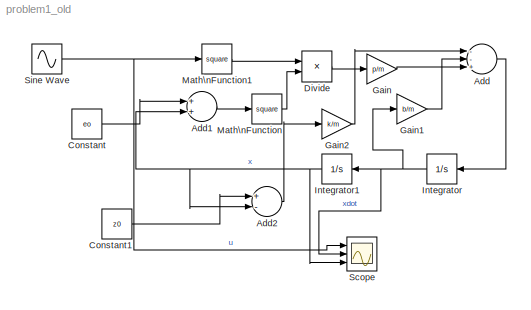
MODEL problem1_old
KIND model
BLOCK [Sum] Add
  InputSameDT = off
  Inputs = --+
  OutDataTypeStr = Inherit: Inherit via internal rule
  Ports = [3, 1]
  SID = 6
  SaturateOnIntegerOverflow = off
BLOCK [Sum] Add1
  InputSameDT = off
  OutDataTypeStr = Inherit: Inherit via internal rule
  Ports = [2, 1]
  SID = 8
  SaturateOnIntegerOverflow = off
BLOCK [Sum] Add2
  InputSameDT = off
  Inputs = +-
  OutDataTypeStr = Inherit: Inherit via internal rule
  Ports = [2, 1]
  SID = 14
  SaturateOnIntegerOverflow = off
BLOCK [Constant] Constant
  SID = 7
  Value = eo
BLOCK [Constant] Constant1
  SID = 15
  Value = z0
BLOCK [Product] Divide
  InputSameDT = off
  Inputs = */
  OutDataTypeStr = Inherit: Inherit via internal rule
  Ports = [2, 1]
  RndMeth = Floor
  SID = 11
  SaturateOnIntegerOverflow = off
BLOCK [Gain] Gain
  Gain = p/m
  OutDataTypeStr = Inherit: Inherit via internal rule
  ParamDataTypeStr = Inherit: Inherit via internal rule
  SID = 3
  SaturateOnIntegerOverflow = off
BLOCK [Gain] Gain1
  Gain = b/m
  OutDataTypeStr = Inherit: Inherit via internal rule
  ParamDataTypeStr = Inherit: Inherit via internal rule
  SID = 12
  SaturateOnIntegerOverflow = off
BLOCK [Gain] Gain2
  Gain = k/m
  OutDataTypeStr = Inherit: Inherit via internal rule
  ParamDataTypeStr = Inherit: Inherit via internal rule
  SID = 13
  SaturateOnIntegerOverflow = off
BLOCK [Integrator] Integrator
  Ports = [1, 1]
  SID = 4
BLOCK [Integrator] Integrator1
  InitialCondition = 0.15
  Ports = [1, 1]
  SID = 5
BLOCK [Math] Math\nFunction
  Operator = square
  Ports = [1, 1]
  SID = 9
BLOCK [Math] Math\nFunction1
  Operator = square
  Ports = [1, 1]
  SID = 10
BLOCK [Scope] Scope
  Floating = off
  NumInputPorts = 3
  Ports = [3]
  SID = 16
  ScopeSpecificationString = Simulink.scopes.TimeScopeBlockCfg('CurrentConfiguration', extmgr.ConfigurationSet(extmgr.Configuration('Core','General UI',true),extmgr.Configuration('Core','Source UI',true),extmgr.Configuration('Sources','WiredSimulink',true),extmgr.Configuration('Visuals','Time Domain',true,'SerializedDisplays',{struct('MinYLimReal','-12.49785','MaxYLimReal','12.49483','YLabelReal','','MinYLimMag','0.00000','Ma...<+1998ch>
BLOCK [Sin] Sine Wave
  Amplitude = 10
  Frequency = 10
  Ports = [0, 1]
  SID = 2
  SampleTime = 0
LINE Add1:1 -> Math\nFunction:1
LINE Add2:1 -> Gain2:1
LINE Add:1 -> Integrator:1
LINE Constant1:1 -> Add2:1
LINE Constant:1 -> Add1:1
LINE Divide:1 -> Gain:1
LINE Gain1:1 -> Add:2
LINE Gain2:1 -> Add:1
LINE Gain:1 -> Add:3
NET Integrator1:1 -> Add1:2, Add2:2, Scope:3
NET Integrator:1 -> Gain1:1, Integrator1:1, Scope:2
LINE Math\nFunction1:1 -> Divide:1
LINE Math\nFunction:1 -> Divide:2
NET Sine Wave:1 -> Math\nFunction1:1, Scope:1
note: NET lines group one-source signal fan-out (src -> all destinations, sorted); 1:1 wires keep LINE
